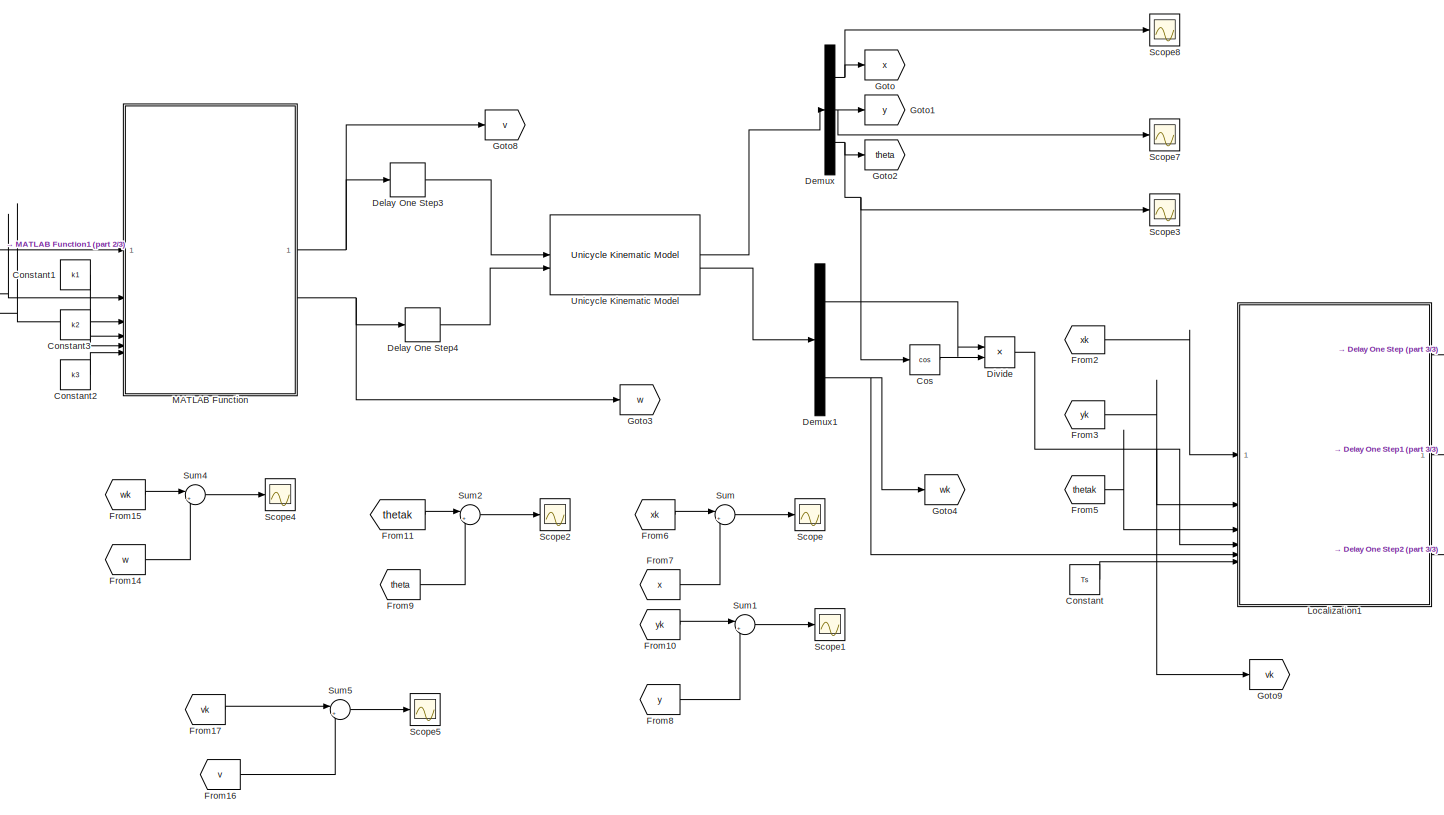
[diagram: root canvas - part 1/3, center side, full height]
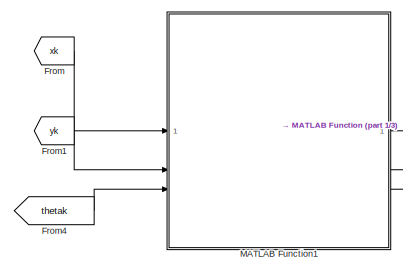
[diagram: root canvas - part 2/3, middle left region]
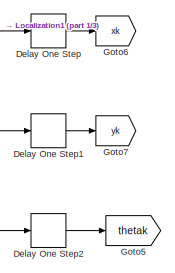
[diagram: root canvas - part 3/3, middle right region]
MODEL slx_1b628c5dd3fc
KIND model
CONFIG AbsTol = auto
CONFIG EnableMultiTasking = off
CONFIG FixedStep = Ts
CONFIG MaxStep = auto
CONFIG MinStep = auto
CONFIG RelTol = 1e-3
CONFIG SampleTimeConstraint = Unconstrained
CONFIG SolverName = FixedStepAuto
CONFIG StartTime = 0.0
CONFIG StopTime = 50
BLOCK [Constant] Constant
  Value = Ts
BLOCK [Constant] Constant1
  Value = k1
BLOCK [Constant] Constant2
  Value = k3
BLOCK [Constant] Constant3
  Value = k2
BLOCK [Trigonometry] Cos
  Operator = cos
BLOCK [Delay] Delay One Step
  DelayLength = 1
  InitialCondition = qi(1)
  InputPortMap = u0
BLOCK [Delay] Delay One Step1
  DelayLength = 1
  InitialCondition = qi(2)
  InputPortMap = u0
BLOCK [Delay] Delay One Step2
  DelayLength = 1
  InitialCondition = qi(3)
  InputPortMap = u0
BLOCK [Delay] Delay One Step3
  DelayLength = 1
  InitialCondition = 0
  InputPortMap = u0
BLOCK [Delay] Delay One Step4
  DelayLength = 1
  InitialCondition = 0
  InputPortMap = u0
BLOCK [Demux] Demux
  Outputs = 3
BLOCK [Demux] Demux1
  Outputs = 3
BLOCK [Product] Divide
  Inputs = */
BLOCK [From] From
  GotoTag = xk
BLOCK [From] From1
  GotoTag = yk
BLOCK [From] From10
  GotoTag = yk
BLOCK [From] From11
  GotoTag = thetak
BLOCK [From] From14
  GotoTag = w
BLOCK [From] From15
  GotoTag = wk
BLOCK [From] From16
  GotoTag = v
BLOCK [From] From17
  GotoTag = vk
BLOCK [From] From2
  GotoTag = xk
BLOCK [From] From3
  GotoTag = yk
BLOCK [From] From4
  GotoTag = thetak
BLOCK [From] From5
  GotoTag = thetak
BLOCK [From] From6
  GotoTag = xk
BLOCK [From] From7
  GotoTag = x
BLOCK [From] From8
  GotoTag = y
BLOCK [From] From9
  GotoTag = theta
BLOCK [Goto] Goto
  GotoTag = x
BLOCK [Goto] Goto1
  GotoTag = y
BLOCK [Goto] Goto2
  GotoTag = theta
BLOCK [Goto] Goto3
  GotoTag = w
BLOCK [Goto] Goto4
  GotoTag = wk
BLOCK [Goto] Goto5
  GotoTag = thetak
BLOCK [Goto] Goto6
  GotoTag = xk
BLOCK [Goto] Goto7
  GotoTag = yk
BLOCK [Goto] Goto8
  GotoTag = v
BLOCK [Goto] Goto9
  GotoTag = vk
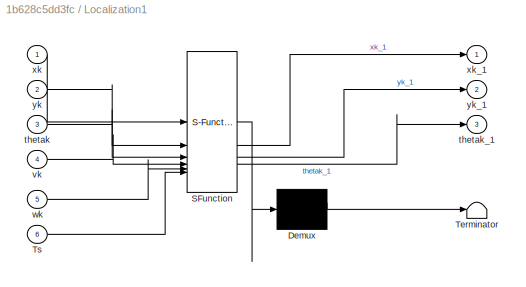
BLOCK [SubSystem] Localization1
  ErrorFcn = Stateflow.Translate.translate
  LibrarySourceBlock = simulink/User-Defined\nFunctions/MATLAB Function
  PermitHierarchicalResolution = ExplicitOnly
  SFBlockType = MATLAB Function
  TreatAsAtomicUnit = on
BLOCK [Demux] Localization1/ Demux 
  Outputs = 1
BLOCK [S-Function] Localization1/ SFunction 
  EnableBusSupport = on
  FunctionName = sf_sfun
  PortCounts = [6 4]
  SFcnIsStateOwnerBlock = off
  SFunctionDeploymentMode = off
  Tag = Stateflow S-Function 4
BLOCK [Terminator] Localization1/ Terminator 
BLOCK [Inport] Localization1/Ts
  Port = 6
BLOCK [Inport] Localization1/thetak
  Port = 3
BLOCK [Outport] Localization1/thetak_1
  Port = 3
BLOCK [Inport] Localization1/vk
  Port = 4
BLOCK [Inport] Localization1/wk
  Port = 5
BLOCK [Inport] Localization1/xk
BLOCK [Outport] Localization1/xk_1
BLOCK [Inport] Localization1/yk
  Port = 2
BLOCK [Outport] Localization1/yk_1
  Port = 2
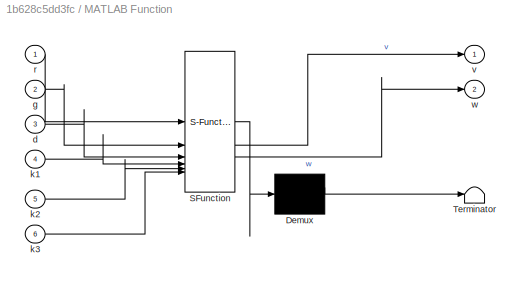
BLOCK [SubSystem] MATLAB Function
  ErrorFcn = Stateflow.Translate.translate
  LibrarySourceBlock = simulink/User-Defined\nFunctions/MATLAB Function
  PermitHierarchicalResolution = ExplicitOnly
  SFBlockType = MATLAB Function
  TreatAsAtomicUnit = on
BLOCK [Demux] MATLAB Function/ Demux 
  Outputs = 1
BLOCK [S-Function] MATLAB Function/ SFunction 
  EnableBusSupport = on
  FunctionName = sf_sfun
  PortCounts = [6 3]
  SFcnIsStateOwnerBlock = off
  SFunctionDeploymentMode = off
  Tag = Stateflow S-Function 2
BLOCK [Terminator] MATLAB Function/ Terminator 
BLOCK [Inport] MATLAB Function/d
  Port = 3
BLOCK [Inport] MATLAB Function/g
  Port = 2
BLOCK [Inport] MATLAB Function/k1
  Port = 4
BLOCK [Inport] MATLAB Function/k2
  Port = 5
BLOCK [Inport] MATLAB Function/k3
  Port = 6
BLOCK [Inport] MATLAB Function/r
BLOCK [Outport] MATLAB Function/v
BLOCK [Outport] MATLAB Function/w
  Port = 2
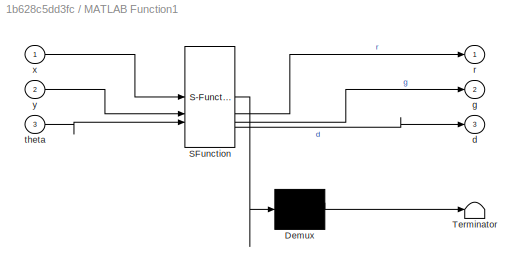
BLOCK [SubSystem] MATLAB Function1
  ErrorFcn = Stateflow.Translate.translate
  LibrarySourceBlock = simulink/User-Defined\nFunctions/MATLAB Function
  PermitHierarchicalResolution = ExplicitOnly
  SFBlockType = MATLAB Function
  TreatAsAtomicUnit = on
BLOCK [Demux] MATLAB Function1/ Demux 
  Outputs = 1
BLOCK [S-Function] MATLAB Function1/ SFunction 
  EnableBusSupport = on
  FunctionName = sf_sfun
  PortCounts = [3 4]
  SFcnIsStateOwnerBlock = off
  SFunctionDeploymentMode = off
  Tag = Stateflow S-Function 1
BLOCK [Terminator] MATLAB Function1/ Terminator 
BLOCK [Outport] MATLAB Function1/d
  Port = 3
BLOCK [Outport] MATLAB Function1/g
  Port = 2
BLOCK [Outport] MATLAB Function1/r
BLOCK [Inport] MATLAB Function1/theta
  Port = 3
BLOCK [Inport] MATLAB Function1/x
BLOCK [Inport] MATLAB Function1/y
  Port = 2
BLOCK [Scope] Scope
  Floating = off
  NumInputPorts = 1
  ScopeSpecificationString = Simulink.scopes.TimeScopeBlockCfg('CurrentConfiguration', extmgr.ConfigurationSet(extmgr.Configuration('Core','General UI',true),extmgr.Configuration('Core','Source UI',true),extmgr.Configuration('Sources','WiredSimulink',true),extmgr.Configuration('Visuals','Time Domain',true,'SerializedDisplays',{struct('MinYLimReal','-0.0003','MaxYLimReal','0.00003','YLabelReal','','MinYLimMag','0.00000','MaxYL...<+1344ch>
BLOCK [Scope] Scope1
  Floating = off
  NumInputPorts = 1
  ScopeSpecificationString = Simulink.scopes.TimeScopeBlockCfg('CurrentConfiguration', extmgr.ConfigurationSet(extmgr.Configuration('Core','General UI',true),extmgr.Configuration('Core','Source UI',true),extmgr.Configuration('Sources','WiredSimulink',true,'DataLoggingVariableName','ScopeData1'),extmgr.Configuration('Visuals','Time Domain',true,'SerializedDisplays',{struct('MinYLimReal','-0.00034','MaxYLimReal','0.00004','YLab...<+1388ch>
BLOCK [Scope] Scope2
  Floating = off
  NumInputPorts = 1
  ScopeSpecificationString = Simulink.scopes.TimeScopeBlockCfg('CurrentConfiguration', extmgr.ConfigurationSet(extmgr.Configuration('Core','General UI',true),extmgr.Configuration('Core','Source UI',true),extmgr.Configuration('Sources','WiredSimulink',true,'DataLoggingVariableName','ScopeData2'),extmgr.Configuration('Visuals','Time Domain',true,'SerializedDisplays',{struct('MinYLimReal','-0.00000000000000003','MaxYLimReal','0....<+1503ch>
BLOCK [Scope] Scope3
  Floating = off
  NumInputPorts = 1
  ScopeSpecificationString = Simulink.scopes.TimeScopeBlockCfg('CurrentConfiguration', extmgr.ConfigurationSet(extmgr.Configuration('Core','General UI',true,'FigureColor',[1 1 1]),extmgr.Configuration('Core','Source UI',true),extmgr.Configuration('Sources','WiredSimulink',true,'DataLoggingVariableName','ScopeData1'),extmgr.Configuration('Visuals','Time Domain',true,'SerializedDisplays',{struct('MinYLimReal','-0.53102','MaxYLi...<+1514ch>
BLOCK [Scope] Scope4
  Floating = off
  NumInputPorts = 1
  ScopeSpecificationString = Simulink.scopes.TimeScopeBlockCfg('CurrentConfiguration', extmgr.ConfigurationSet(extmgr.Configuration('Core','General UI',true),extmgr.Configuration('Core','Source UI',true),extmgr.Configuration('Sources','WiredSimulink',true,'DataLoggingVariableName','ScopeData4'),extmgr.Configuration('Visuals','Time Domain',true,'SerializedDisplays',{struct('MinYLimReal','-3.57972','MaxYLimReal','0.80157','YLab...<+1407ch>
BLOCK [Scope] Scope5
  Floating = off
  NumInputPorts = 1
  ScopeSpecificationString = Simulink.scopes.TimeScopeBlockCfg('CurrentConfiguration', extmgr.ConfigurationSet(extmgr.Configuration('Core','General UI',true),extmgr.Configuration('Core','Source UI',true),extmgr.Configuration('Sources','WiredSimulink',true,'DataLoggingVariableName','ScopeData5'),extmgr.Configuration('Visuals','Time Domain',true,'SerializedDisplays',{struct('MinYLimReal','-0.33102','MaxYLimReal','1.60813','YLab...<+1388ch>
BLOCK [Scope] Scope7
  Floating = off
  NumInputPorts = 1
  ScopeSpecificationString = Simulink.scopes.TimeScopeBlockCfg('CurrentConfiguration', extmgr.ConfigurationSet(extmgr.Configuration('Core','General UI',true,'FigureColor',[1 1 1]),extmgr.Configuration('Core','Source UI',true),extmgr.Configuration('Sources','WiredSimulink',true,'DataLoggingVariableName','ScopeData3'),extmgr.Configuration('Visuals','Time Domain',true,'SerializedDisplays',{struct('MinYLimReal','-0.14436','MaxYLi...<+1545ch>
BLOCK [Scope] Scope8
  Floating = off
  NumInputPorts = 1
  ScopeSpecificationString = Simulink.scopes.TimeScopeBlockCfg('CurrentConfiguration', extmgr.ConfigurationSet(extmgr.Configuration('Core','General UI',true,'FigureColor',[1 1 1]),extmgr.Configuration('Core','Source UI',true),extmgr.Configuration('Sources','WiredSimulink',true,'DataLoggingVariableName','ScopeData4'),extmgr.Configuration('Visuals','Time Domain',true,'SerializedDisplays',{struct('MinYLimReal','-0.12524','MaxYLi...<+1547ch>
BLOCK [Sum] Sum
  Inputs = |+-
BLOCK [Sum] Sum1
  Inputs = |+-
BLOCK [Sum] Sum2
  Inputs = |+-
BLOCK [Sum] Sum4
  Inputs = |+-
BLOCK [Sum] Sum5
  Inputs = |+-
BLOCK [Reference] Unicycle Kinematic Model  REF=robotmobilelib/Unicycle Kinematic Model
  SourceBlock = robotmobilelib/Unicycle Kinematic Model
  SourceType = Unicycle Kinematic Model
LINE Constant1:1 -> MATLAB Function:4
LINE Constant2:1 -> MATLAB Function:6
LINE Constant3:1 -> MATLAB Function:5
LINE Constant:1 -> Localization1:6
LINE Cos:1 -> Divide:2
LINE Delay One Step1:1 -> Goto7:1
LINE Delay One Step2:1 -> Goto5:1
LINE Delay One Step3:1 -> Unicycle Kinematic Model:1
LINE Delay One Step4:1 -> Unicycle Kinematic Model:2
LINE Delay One Step:1 -> Goto6:1
LINE Demux1:1 -> Divide:1
NET Demux1:3 -> Goto4:1, Localization1:5
NET Demux:1 -> Goto:1, Scope8:1
NET Demux:2 -> Goto1:1, Scope7:1
NET Demux:3 -> Cos:1, Goto2:1, Scope3:1
NET Divide:1 -> Goto9:1, Localization1:4
LINE From10:1 -> Sum1:1
LINE From11:1 -> Sum2:1
LINE From14:1 -> Sum4:2
LINE From15:1 -> Sum4:1
LINE From16:1 -> Sum5:2
LINE From17:1 -> Sum5:1
LINE From1:1 -> MATLAB Function1:2
LINE From2:1 -> Localization1:1
LINE From3:1 -> Localization1:2
LINE From4:1 -> MATLAB Function1:3
LINE From5:1 -> Localization1:3
LINE From6:1 -> Sum:1
LINE From7:1 -> Sum:2
LINE From8:1 -> Sum1:2
LINE From9:1 -> Sum2:2
LINE From:1 -> MATLAB Function1:1
LINE Localization1:1 -> Delay One Step:1
LINE Localization1:2 -> Delay One Step1:1
LINE Localization1:3 -> Delay One Step2:1
LINE MATLAB Function1:1 -> MATLAB Function:1
LINE MATLAB Function1:2 -> MATLAB Function:2
LINE MATLAB Function1:3 -> MATLAB Function:3
NET MATLAB Function:1 -> Delay One Step3:1, Goto8:1
NET MATLAB Function:2 -> Delay One Step4:1, Goto3:1
LINE Sum1:1 -> Scope1:1
LINE Sum2:1 -> Scope2:1
LINE Sum4:1 -> Scope4:1
LINE Sum5:1 -> Scope5:1
LINE Sum:1 -> Scope:1
LINE Unicycle Kinematic Model:1 -> Demux:1
LINE Unicycle Kinematic Model:2 -> Demux1:1
note: NET lines group one-source signal fan-out (src -> all destinations, sorted); 1:1 wires keep LINE
CHART MATLAB Function1 states=1 transitions=1
  STATE_LABEL 'eML_blk_kernel()'
  STATE_LABEL 'SCRIPT:\nfunction [r,g,d] = compute_polar_coordinates(x,y,theta)\n\nr=sqrt(x^2+y^2);\ng=atan2(y,x)-theta+pi;\nd=g+theta;\n\nend '
CHART MATLAB Function states=1 transitions=1
  STATE_LABEL 'eML_blk_kernel()'
  STATE_LABEL 'SCRIPT:\nfunction [v,w] = posture_regulation(r,g,d, k1, k2, k3)\n\n\nv=k1*r*cos(g);\nw=k2*g+k1*sin(g)*cos(g)*(1+k3*d/g);\n\nend '
CHART Localization1 states=1 transitions=1
  STATE_LABEL 'eML_blk_kernel()'
  STATE_LABEL 'SCRIPT:\nfunction [xk_1,yk_1,thetak_1] = Localization1(xk, yk, thetak, vk, wk, Ts)\n\nxk_1=xk+vk*Ts*cos(thetak+wk*Ts/2);\nyk_1=yk+vk*Ts*sin(thetak+wk*Ts/2);\nthetak_1=thetak+wk*Ts;\n\nend\n\n'
CHART  states=0 transitions=0
CHART  states=0 transitions=0
CHART  states=0 transitions=0
